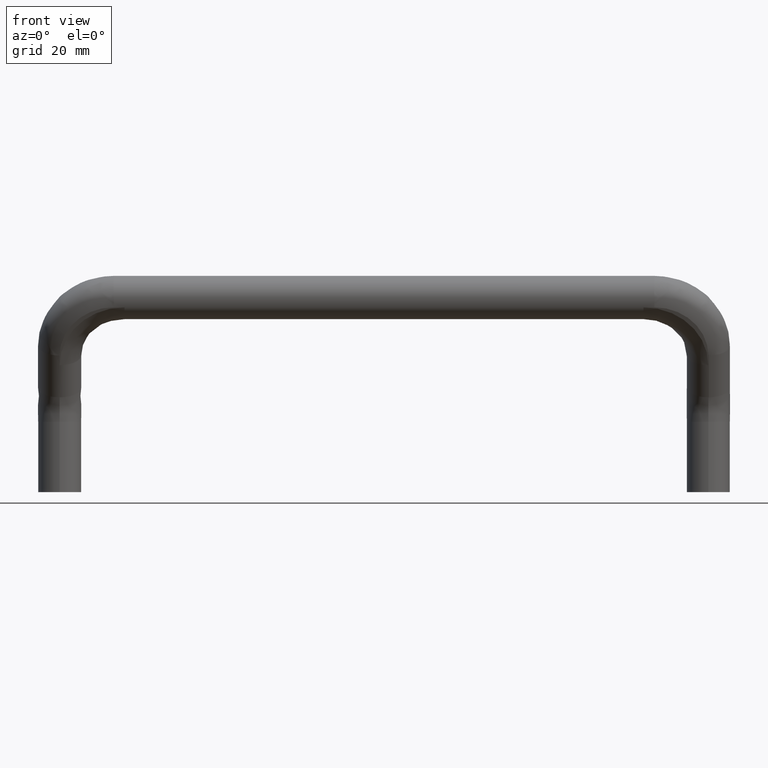
[diagram: clean part render]
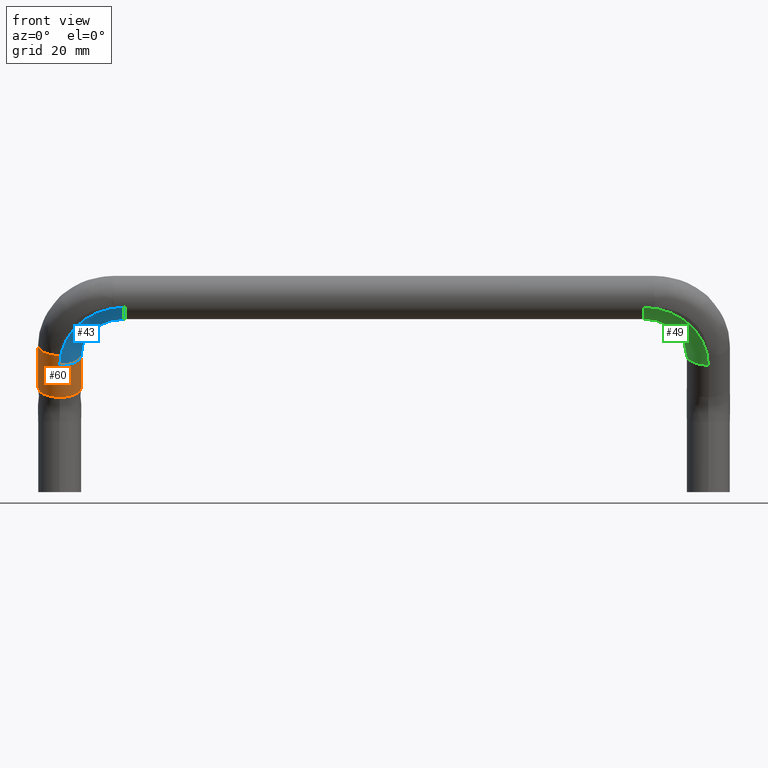
[diagram: same view with three faces highlighted in distinct colors, each labeled with its STEP entity id]
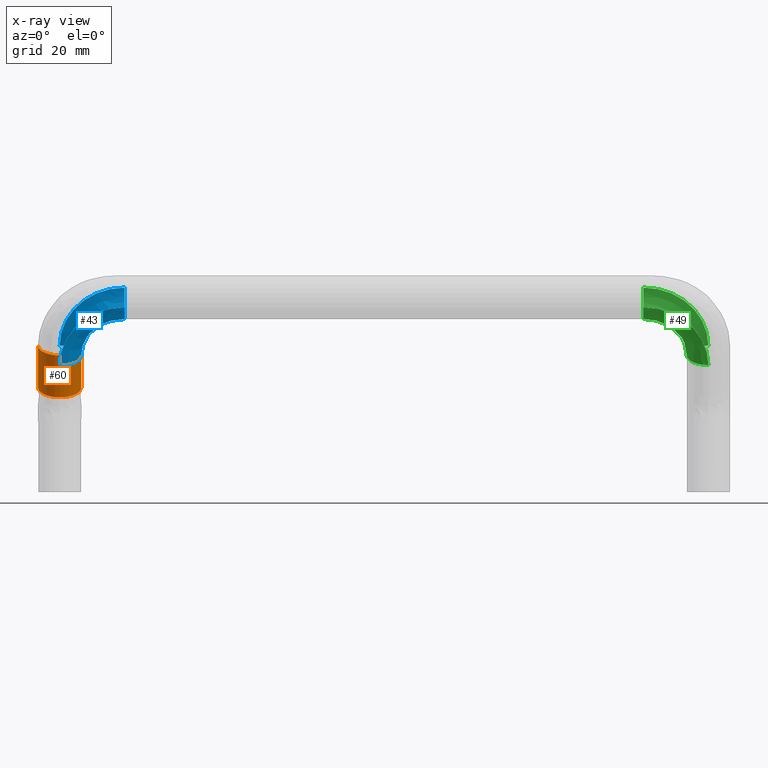
[diagram: x-ray of the same camera — body ghosted, the three highlighted faces saturated]
A machine part, front view with three faces highlighted in distinct colors.
The next image is the same camera in x-ray (body ghosted, the three faces saturated) — at least one of them is partly hidden behind the body in this view.
Their STEP definitions:

[orange] entity #60 — the highlighted cylindrical surface (edge-blend (fillet) strip) has radius 4 mm, axis along (-0, -0.4537, 0.8911).
#60=ADVANCED_FACE('',(#273),#272,.T.);
#272=CYLINDRICAL_SURFACE('',#623,4.00000000000E+00);
#273=FACE_OUTER_BOUND('',#624,.T.);
#620=CARTESIAN_POINT('',(-6.00000000001E+01,6.50663879602E+00,-8.77981880250E+00));
#621=DIRECTION('',(-0.00000000000E+00,-4.53713455470E-01,8.91147631050E-01));
#622=DIRECTION('',(-1.00000000000E+00,5.73060246579E-15,2.91764389658E-15));
#623=AXIS2_PLACEMENT_3D('',#620,#621,#622);
#624=EDGE_LOOP('',(#792,#793,#794,#795,#796,#797,#798));
#792=ORIENTED_EDGE('',*,*,#853,.T.);
#793=ORIENTED_EDGE('',*,*,#874,.T.);
#794=ORIENTED_EDGE('',*,*,#865,.T.);
#795=ORIENTED_EDGE('',*,*,#898,.F.);
#796=ORIENTED_EDGE('',*,*,#899,.F.);
#797=ORIENTED_EDGE('',*,*,#900,.F.);
#798=ORIENTED_EDGE('',*,*,#901,.T.);
#853=EDGE_CURVE('',#1004,#1005,#1006,.T.);
#865=EDGE_CURVE('',#1089,#1082,#1090,.T.);
#874=EDGE_CURVE('',#1005,#1089,#1148,.T.);
#898=EDGE_CURVE('',#1304,#1082,#1305,.T.);
#899=EDGE_CURVE('',#1311,#1304,#1312,.T.);
#900=EDGE_CURVE('',#1318,#1311,#1319,.T.);
#901=EDGE_CURVE('',#1318,#1004,#1325,.T.);
#1004=VERTEX_POINT('',#1468);
#1005=VERTEX_POINT('',#1469);
#1006=CIRCLE('',#1473,4.00000000000E+00);
#1082=VERTEX_POINT('',#1524);
#1089=VERTEX_POINT('',#1529);
#1090=CIRCLE('',#1533,4.00000000000E+00);
#1148=LINE('',#1567,#1568);
#1304=VERTEX_POINT('',#1658);
#1305=(BOUNDED_CURVE() B_SPLINE_CURVE(1,(#1659,#1660),.UNSPECIFIED.,.F.,.F.) B_SPLINE_CURVE_WITH_KNOTS((2,2),(8.33333343261E-02,9.16666664274E-01),.UNSPECIFIED.) CURVE() GEOMETRIC_REPRESENTATION_ITEM() RATIONAL_B_SPLINE_CURVE((1.00000000000E+00,1.00000000000E+00)) REPRESENTATION_ITEM('') );
#1311=VERTEX_POINT('',#1661);
#1312=CIRCLE('',#1665,4.00000000000E+00);
#1318=VERTEX_POINT('',#1666);
#1319=CIRCLE('',#1670,4.00000000000E+00);
#1325=(BOUNDED_CURVE() B_SPLINE_CURVE(1,(#1671,#1672),.UNSPECIFIED.,.F.,.F.) B_SPLINE_CURVE_WITH_KNOTS((2,2),(8.33333333333E-02,7.24688475938E-01),.UNSPECIFIED.) CURVE() GEOMETRIC_REPRESENTATION_ITEM() RATIONAL_B_SPLINE_CURVE((7.50000000000E-01,7.50000000000E-01)) REPRESENTATION_ITEM('') );
#1468=CARTESIAN_POINT('',(-5.60000000001E+01,5.44456172076E+00,-6.69377144282E+00));
#1469=CARTESIAN_POINT('',(-6.00000000001E+01,1.87997094149E+00,-8.50862539456E+00));
#1470=CARTESIAN_POINT('',(-6.00000000001E+01,5.44456146569E+00,-6.69377157268E+00));
#1471=DIRECTION('',(1.36003003584E-16,4.53713455470E-01,-8.91147631050E-01));
#1472=DIRECTION('',(-1.00000000000E+00,1.39483091743E-10,7.10154157701E-11));
#1473=AXIS2_PLACEMENT_3D('',#1470,#1471,#1472);
#1524=CARTESIAN_POINT('',(-6.40000000001E+01,4.53713455410E+00,-4.91147631069E+00));
#1529=CARTESIAN_POINT('',(-6.00000000001E+01,9.72544030464E-01,-6.72633013229E+00));
#1530=CARTESIAN_POINT('',(-6.00000000001E+01,4.53713455466E+00,-4.91147631041E+00));
#1531=DIRECTION('',(-1.39452967292E-16,4.53713455470E-01,-8.91147631050E-01));
#1532=DIRECTION('',(1.00000000000E+00,-4.75267381006E-10,-2.41974884574E-10));
#1533=AXIS2_PLACEMENT_3D('',#1530,#1531,#1532);
#1567=CARTESIAN_POINT('',(-6.00000000001E+01,1.87997094149E+00,-8.50862539456E+00));
#1568=VECTOR('',#1569,2.00000000019E+00);
#1569=DIRECTION('',(0.00000000000E+00,-4.53713455470E-01,8.91147631050E-01));
#1658=CARTESIAN_POINT('',(-6.40000000001E+01,8.47606683471E+00,-1.26480116234E+01));
#1659=CARTESIAN_POINT('',(-6.40000000001E+01,8.47606683001E+00,-1.26480116142E+01));
#1660=CARTESIAN_POINT('',(-6.40000000001E+01,4.53713456597E+00,-4.91147633262E+00));
#1661=CARTESIAN_POINT('',(-6.00000000008E+01,4.91147631049E+00,-1.44628654453E+01));
#1662=CARTESIAN_POINT('',(-6.00000000001E+01,8.47606683469E+00,-1.26480116234E+01));
#1663=DIRECTION('',(1.65436122511E-24,4.53713455470E-01,-8.91147631050E-01));
#1664=DIRECTION('',(-2.62249990612E-08,8.91147631050E-01,4.53713455470E-01));
#1665=AXIS2_PLACEMENT_3D('',#1662,#1663,#1664);
#1666=CARTESIAN_POINT('',(-5.60000000001E+01,8.47606798242E+00,-1.26480110391E+01));
#1667=CARTESIAN_POINT('',(-6.00000000001E+01,8.47606683469E+00,-1.26480116234E+01));
#1668=DIRECTION('',(1.65436122511E-24,4.53713455470E-01,-8.91147631050E-01));
#1669=DIRECTION('',(-2.62249990612E-08,8.91147631050E-01,4.53713455470E-01));
#1670=AXIS2_PLACEMENT_3D('',#1667,#1668,#1669);
#1671=CARTESIAN_POINT('',(-5.60000000001E+01,8.47606683470E+00,-1.26480116234E+01));
#1672=CARTESIAN_POINT('',(-5.60000000001E+01,5.44456146569E+00,-6.69377157269E+00));

[blue] entity #43 — the highlighted face is a freeform B-spline surface patch.
#43=ADVANCED_FACE('',(#102),#101,.T.);
#101=( BOUNDED_SURFACE() B_SPLINE_SURFACE( 2,2,((#429,#430,#431,#432,#433),(#434,#435,#436,#437,#438),(#439,#440,#441,#442,#443),(#444,#445,#446,#447,#448),(#449,#450,#451,#452,#453),(#454,#455,#456,#457,#458),(#459,#460,#461,#462,#463)), .UNSPECIFIED.,.F.,.F.,.F.) B_SPLINE_SURFACE_WITH_KNOTS((3,2,2,3),(3,2,3),(-1.55147984033E+00,0.00000000000E+00,1.57079632679E+00,1.59011272818E+00),(2.44016936071E-01,3.33333333333E-01,4.99999999999E-01), .UNSPECIFIED. ) GEOMETRIC_REPRESENTATION_ITEM() RATIONAL_B_SPLINE_SURFACE(((7.98128216237E-01,8.59863648611E-01,9.92885017615E-01,7.44663763212E-01,7.44663763211E-01),(5.71301357895E-01,6.15491671716E-01,7.10708564434E-01,5.33031423327E-01,5.33031423326E-01),(8.03847577592E-01,8.66025404107E-01,1.00000000000E+00,7.50000000001E-01,7.50000000000E-01),(5.68406073156E-01,6.12372435924E-01,7.07106781187E-01,5.30330085891E-01,5.30330085890E-01),(8.03847577592E-01,8.66025404107E-01,1.00000000000E+00,7.50000000001E-01,7.50000000000E-01),(8.00952305606E-01,8.62906182052E-01,9.96398232616E-01,7.47298674463E-01,7.47298674462E-01),(7.98128241114E-01,8.59863675412E-01,9.92885048562E-01,7.44663786423E-01,7.44663786421E-01))) REPRESENTATION_ITEM('') SURFACE() );
#102=FACE_OUTER_BOUND('',#464,.T.);
#429=CARTESIAN_POINT('',(-4.80000000169E+01,3.56459066434E+00,5.81485354663E+00));
#430=CARTESIAN_POINT('',(-5.12153902344E+01,3.56459066638E+00,5.81485354263E+00));
#431=CARTESIAN_POINT('',(-5.39999998458E+01,4.29402356952E+00,4.38215985499E+00));
#432=CARTESIAN_POINT('',(-5.99999996914E+01,5.86573304300E+00,1.29513398636E+00));
#433=CARTESIAN_POINT('',(-5.99999996914E+01,9.00915198990E+00,-4.87891775082E+00));
#434=CARTESIAN_POINT('',(-4.80000000114E+01,5.34804213996E+00,2.31194032715E+00));
#435=CARTESIAN_POINT('',(-5.01621385609E+01,5.34804214133E+00,2.31194032446E+00));
#436=CARTESIAN_POINT('',(-5.20346054713E+01,5.83853781759E+00,1.34854800124E+00));
#437=CARTESIAN_POINT('',(-5.60692109424E+01,6.89540911824E+00,-7.27273962021E-01));
#438=CARTESIAN_POINT('',(-5.60692109424E+01,9.00915171949E+00,-4.87891788848E+00));
#439=CARTESIAN_POINT('',(-4.80000000113E+01,1.87678809351E+00,4.67625946643E-01));
#440=CARTESIAN_POINT('',(-5.01437567846E+01,1.87678809487E+00,4.67625943975E-01));
#441=CARTESIAN_POINT('',(-5.20003046099E+01,2.36311374153E+00,-4.87575941090E-01));
#442=CARTESIAN_POINT('',(-5.60006092195E+01,3.41099987713E+00,-2.54574996280E+00));
#443=CARTESIAN_POINT('',(-5.60006092195E+01,5.50677214831E+00,-6.66209800617E+00));
#444=CARTESIAN_POINT('',(-4.80000000112E+01,-1.65558595976E+00,-1.40916214682E+00));
#445=CARTESIAN_POINT('',(-5.01250513518E+01,-1.65558595842E+00,-1.40916214947E+00));
#446=CARTESIAN_POINT('',(-5.19653997970E+01,-1.17350376503E+00,-2.35602938347E+00));
#447=CARTESIAN_POINT('',(-5.59307995938E+01,-1.34761000504E-01,-4.39624472801E+00));
#448=CARTESIAN_POINT('',(-5.59307995938E+01,1.94272452851E+00,-8.47667541702E+00));
#449=CARTESIAN_POINT('',(-4.80000000168E+01,-3.53237405323E+00,2.12321190645E+00));
#450=CARTESIAN_POINT('',(-5.11966848843E+01,-3.53237405120E+00,2.12321190247E+00));
#451=CARTESIAN_POINT('',(-5.39650951873E+01,-2.80718458256E+00,6.98852829031E-01));
#452=CARTESIAN_POINT('',(-5.99301903744E+01,-1.24461843972E+00,-2.37021444186E+00));
#453=CARTESIAN_POINT('',(-5.99301903744E+01,1.88051384590E+00,-8.50834898356E+00));
#454=CARTESIAN_POINT('',(-4.80000000168E+01,-3.54875253484E+00,2.15403846789E+00));
#455=CARTESIAN_POINT('',(-5.12060368884E+01,-3.54875253281E+00,2.15403846390E+00));
#456=CARTESIAN_POINT('',(-5.39825462647E+01,-2.82144149911E+00,7.25512382289E-01));
#457=CARTESIAN_POINT('',(-5.99650925291E+01,-1.25430401889E+00,-2.35253354337E+00));
#458=CARTESIAN_POINT('',(-5.99650925291E+01,1.87997094150E+00,-8.50862539458E+00));
#459=CARTESIAN_POINT('',(-4.80000000169E+01,-3.56459052424E+00,2.18514617820E+00));
#460=CARTESIAN_POINT('',(-5.12153903172E+01,-3.56459052220E+00,2.18514617420E+00));
#461=CARTESIAN_POINT('',(-5.40000000003E+01,-2.83515760028E+00,7.52452449678E-01));
#462=CARTESIAN_POINT('',(-6.00000000003E+01,-1.26344808634E+00,-2.33457349844E+00));
#463=CARTESIAN_POINT('',(-6.00000000003E+01,1.87997094150E+00,-8.50862539458E+00));
#464=EDGE_LOOP('',(#706,#707,#708,#709,#710,#711));
#706=ORIENTED_EDGE('',*,*,#853,.F.);
#707=ORIENTED_EDGE('',*,*,#854,.F.);
#708=ORIENTED_EDGE('',*,*,#855,.T.);
#709=ORIENTED_EDGE('',*,*,#856,.T.);
#710=ORIENTED_EDGE('',*,*,#857,.T.);
#711=ORIENTED_EDGE('',*,*,#858,.T.);
#853=EDGE_CURVE('',#1004,#1005,#1006,.T.);
#854=EDGE_CURVE('',#1012,#1004,#1013,.T.);
#855=EDGE_CURVE('',#1012,#1019,#1020,.T.);
#856=EDGE_CURVE('',#1019,#1026,#1027,.T.);
#857=EDGE_CURVE('',#1026,#1033,#1034,.T.);
#858=EDGE_CURVE('',#1033,#1005,#1040,.T.);
#1004=VERTEX_POINT('',#1468);
#1005=VERTEX_POINT('',#1469);
#1006=CIRCLE('',#1473,4.00000000000E+00);
#1012=VERTEX_POINT('',#1474);
#1013=CIRCLE('',#1478,4.00000000000E+00);
#1019=VERTEX_POINT('',#1479);
#1020=CIRCLE('',#1483,1.20000000000E+01);
#1026=VERTEX_POINT('',#1484);
#1027=CIRCLE('',#1488,4.00000000000E+00);
#1033=VERTEX_POINT('',#1489);
#1034=CIRCLE('',#1493,4.00000000000E+00);
#1040=CIRCLE('',#1497,1.20000000000E+01);
#1468=CARTESIAN_POINT('',(-5.60000000001E+01,5.44456172076E+00,-6.69377144282E+00));
#1469=CARTESIAN_POINT('',(-6.00000000001E+01,1.87997094149E+00,-8.50862539456E+00));
#1470=CARTESIAN_POINT('',(-6.00000000001E+01,5.44456146569E+00,-6.69377157268E+00));
#1471=DIRECTION('',(1.36003003584E-16,4.53713455470E-01,-8.91147631050E-01));
#1472=DIRECTION('',(-1.00000000000E+00,1.39483091743E-10,7.10154157701E-11));
#1473=AXIS2_PLACEMENT_3D('',#1470,#1471,#1472);
#1474=CARTESIAN_POINT('',(-6.00000000001E+01,9.00915198987E+00,-4.87891775082E+00));
#1475=CARTESIAN_POINT('',(-6.00000000001E+01,5.44456146569E+00,-6.69377157268E+00));
#1476=DIRECTION('',(1.36003003584E-16,4.53713455470E-01,-8.91147631050E-01));
#1477=DIRECTION('',(-1.00000000000E+00,1.39483091743E-10,7.10154157701E-11));
#1478=AXIS2_PLACEMENT_3D('',#1475,#1476,#1477);
#1479=CARTESIAN_POINT('',(-4.80000000001E+01,3.56459052426E+00,5.81485382179E+00));
#1480=CARTESIAN_POINT('',(-4.80000000001E+01,9.00915198987E+00,-4.87891775082E+00));
#1481=DIRECTION('',(0.00000000000E+00,8.91147631051E-01,4.53713455468E-01));
#1482=DIRECTION('',(1.00000000000E+00,-0.00000000000E+00,-0.00000000000E+00));
#1483=AXIS2_PLACEMENT_3D('',#1480,#1481,#1482);
#1484=CARTESIAN_POINT('',(-4.80000000001E+01,-5.52098460034E-06,-7.61902096730E-11));
#1485=CARTESIAN_POINT('',(-4.80000000001E+01,4.27399001607E-11,3.99999999992E+00));
#1486=DIRECTION('',(-1.00000000000E+00,3.14826953025E-15,-6.18357886458E-15));
#1487=DIRECTION('',(-4.55310903712E-31,8.91147631052E-01,4.53713455466E-01));
#1488=AXIS2_PLACEMENT_3D('',#1485,#1486,#1487);
#1489=CARTESIAN_POINT('',(-4.80000000001E+01,-3.56459052424E+00,2.18514617820E+00));
#1490=CARTESIAN_POINT('',(-4.80000000001E+01,4.27399001607E-11,3.99999999992E+00));
#1491=DIRECTION('',(-1.00000000000E+00,3.14826953025E-15,-6.18357886458E-15));
#1492=DIRECTION('',(-4.55310903712E-31,8.91147631052E-01,4.53713455466E-01));
#1493=AXIS2_PLACEMENT_3D('',#1490,#1491,#1492);
#1494=CARTESIAN_POINT('',(-4.80000000001E+01,1.87997094149E+00,-8.50862539456E+00));
#1495=DIRECTION('',(0.00000000000E+00,-8.91147631050E-01,-4.53713455470E-01));
#1496=DIRECTION('',(-0.00000000000E+00,4.53713455470E-01,-8.91147631050E-01));
#1497=AXIS2_PLACEMENT_3D('',#1494,#1495,#1496);

[green] entity #49 — the highlighted face is a freeform B-spline surface patch.
#49=ADVANCED_FACE('',(#163),#162,.T.);
#162=( BOUNDED_SURFACE() B_SPLINE_SURFACE( 2,2,((#522,#523,#524,#525,#526),(#527,#528,#529,#530,#531),(#532,#533,#534,#535,#536),(#537,#538,#539,#540,#541),(#542,#543,#544,#545,#546)), .UNSPECIFIED.,.F.,.F.,.F.) B_SPLINE_SURFACE_WITH_KNOTS((3,2,3),(3,2,3),(-1.57079623988E+00,4.44089209850E-16,1.57079632356E+00),(2.44016936053E-01,3.33333333333E-01,5.00000000000E-01), .UNSPECIFIED. ) GEOMETRIC_REPRESENTATION_ITEM() RATIONAL_B_SPLINE_SURFACE(((8.03847551513E-01,8.66025376010E-01,9.99999967588E-01,7.49999975691E-01,7.49999975691E-01),(5.68406086166E-01,6.12372449939E-01,7.07106797393E-01,5.30330098044E-01,5.30330098045E-01),(8.03847577567E-01,8.66025404080E-01,1.00000000000E+00,7.50000000000E-01,7.50000000000E-01),(5.68406073623E-01,6.12372436427E-01,7.07106781789E-01,5.30330086342E-01,5.30330086342E-01),(8.03847576598E-01,8.66025403035E-01,9.99999998794E-01,7.49999999095E-01,7.49999999096E-01))) REPRESENTATION_ITEM('') SURFACE() );
#163=FACE_OUTER_BOUND('',#547,.T.);
#522=CARTESIAN_POINT('',(5.99999996871E+01,9.00915198294E+00,-4.87891773716E+00));
#523=CARTESIAN_POINT('',(5.99999996830E+01,7.55028617684E+00,-2.01353036227E+00));
#524=CARTESIAN_POINT('',(5.83923045745E+01,6.28687132805E+00,4.67967896063E-01));
#525=CARTESIAN_POINT('',(5.49282030497E+01,3.56459066624E+00,5.81485354288E+00));
#526=CARTESIAN_POINT('',(4.80000000001E+01,3.56459066625E+00,5.81485354286E+00));
#527=CARTESIAN_POINT('',(5.60000000001E+01,9.00915170632E+00,-4.87891788372E+00));
#528=CARTESIAN_POINT('',(5.59999999974E+01,8.03657447689E+00,-2.96865958396E+00));
#529=CARTESIAN_POINT('',(5.49282032304E+01,7.19429788906E+00,-1.31432736859E+00));
#530=CARTESIAN_POINT('',(5.26188021536E+01,5.37944406718E+00,2.25026315560E+00));
#531=CARTESIAN_POINT('',(4.80000000001E+01,5.37944406719E+00,2.25026315558E+00));
#532=CARTESIAN_POINT('',(5.60000000001E+01,5.44456146105E+00,-6.69377156358E+00));
#533=CARTESIAN_POINT('',(5.59999999974E+01,4.47198423162E+00,-4.78351326383E+00));
#534=CARTESIAN_POINT('',(5.49282032304E+01,3.62970764379E+00,-3.12918104846E+00));
#535=CARTESIAN_POINT('',(5.26188021536E+01,1.81485382192E+00,4.35409475732E-01));
#536=CARTESIAN_POINT('',(4.80000000001E+01,1.81485382192E+00,4.35409475716E-01));
#537=CARTESIAN_POINT('',(5.60000000001E+01,1.87997094724E+00,-8.50862538018E+00));
#538=CARTESIAN_POINT('',(5.59999999974E+01,9.07393717805E-01,-6.59836708043E+00));
#539=CARTESIAN_POINT('',(5.49282032304E+01,6.51171299763E-02,-4.94403486505E+00));
#540=CARTESIAN_POINT('',(5.26188021536E+01,-1.74973669190E+00,-1.37944434086E+00));
#541=CARTESIAN_POINT('',(4.80000000001E+01,-1.74973669189E+00,-1.37944434088E+00));
#542=CARTESIAN_POINT('',(5.99999999885E+01,1.87997093455E+00,-8.50862538092E+00));
#543=CARTESIAN_POINT('',(5.99999999844E+01,4.21105091813E-01,-5.64323793407E+00));
#544=CARTESIAN_POINT('',(5.83923048354E+01,-8.42309788704E-01,-3.16173961342E+00));
#545=CARTESIAN_POINT('',(5.49282032236E+01,-3.56459051888E+00,2.18514616768E+00));
#546=CARTESIAN_POINT('',(4.80000000001E+01,-3.56459051887E+00,2.18514616765E+00));
#547=EDGE_LOOP('',(#732,#733,#734,#735,#736,#737));
#732=ORIENTED_EDGE('',*,*,#875,.T.);
#733=ORIENTED_EDGE('',*,*,#876,.T.);
#734=ORIENTED_EDGE('',*,*,#877,.F.);
#735=ORIENTED_EDGE('',*,*,#878,.F.);
#736=ORIENTED_EDGE('',*,*,#879,.F.);
#737=ORIENTED_EDGE('',*,*,#844,.F.);
#844=EDGE_CURVE('',#942,#943,#944,.T.);
#875=EDGE_CURVE('',#942,#1154,#1155,.T.);
#876=EDGE_CURVE('',#1154,#1161,#1162,.T.);
#877=EDGE_CURVE('',#1168,#1161,#1169,.T.);
#878=EDGE_CURVE('',#1175,#1168,#1176,.T.);
#879=EDGE_CURVE('',#943,#1175,#1182,.T.);
#942=VERTEX_POINT('',#1426);
#943=VERTEX_POINT('',#1427);
#944=CIRCLE('',#1431,1.20000000000E+01);
#1154=VERTEX_POINT('',#1570);
#1155=CIRCLE('',#1574,4.00000000000E+00);
#1161=VERTEX_POINT('',#1575);
#1162=CIRCLE('',#1579,4.00000000000E+00);
#1168=VERTEX_POINT('',#1580);
#1169=CIRCLE('',#1584,1.20000000000E+01);
#1175=VERTEX_POINT('',#1585);
#1176=CIRCLE('',#1589,4.00000000000E+00);
#1182=CIRCLE('',#1593,4.00000000000E+00);
#1426=CARTESIAN_POINT('',(6.00000000001E+01,9.00915198987E+00,-4.87891775082E+00));
#1427=CARTESIAN_POINT('',(4.80000000001E+01,3.56459052426E+00,5.81485382179E+00));
#1428=CARTESIAN_POINT('',(4.80000000001E+01,9.00915198987E+00,-4.87891775082E+00));
#1429=DIRECTION('',(0.00000000000E+00,-8.91147631051E-01,-4.53713455468E-01));
#1430=DIRECTION('',(-1.00000000000E+00,-0.00000000000E+00,-0.00000000000E+00));
#1431=AXIS2_PLACEMENT_3D('',#1428,#1429,#1430);
#1570=CARTESIAN_POINT('',(5.98813130641E+01,9.00758249058E+00,-4.87971683608E+00));
#1571=CARTESIAN_POINT('',(6.00000000001E+01,5.44456146569E+00,-6.69377157268E+00));
#1572=DIRECTION('',(0.00000000000E+00,-4.53713455470E-01,8.91147631050E-01));
#1573=DIRECTION('',(-0.00000000000E+00,-8.91147631050E-01,-4.53713455470E-01));
#1574=AXIS2_PLACEMENT_3D('',#1571,#1572,#1573);
#1575=CARTESIAN_POINT('',(6.00000000001E+01,1.87997094149E+00,-8.50862539456E+00));
#1576=CARTESIAN_POINT('',(6.00000000001E+01,5.44456146569E+00,-6.69377157268E+00));
#1577=DIRECTION('',(0.00000000000E+00,-4.53713455470E-01,8.91147631050E-01));
#1578=DIRECTION('',(-0.00000000000E+00,-8.91147631050E-01,-4.53713455470E-01));
#1579=AXIS2_PLACEMENT_3D('',#1576,#1577,#1578);
#1580=CARTESIAN_POINT('',(4.80000000001E+01,-3.56459052424E+00,2.18514617820E+00));
#1581=CARTESIAN_POINT('',(4.80000000001E+01,1.87997094149E+00,-8.50862539456E+00));
#1582=DIRECTION('',(0.00000000000E+00,8.91147631050E-01,4.53713455470E-01));
#1583=DIRECTION('',(-0.00000000000E+00,4.53713455470E-01,-8.91147631050E-01));
#1584=AXIS2_PLACEMENT_3D('',#1581,#1582,#1583);
#1585=CARTESIAN_POINT('',(4.80000000001E+01,-5.52098460072E-06,-7.61897973083E-11));
#1586=CARTESIAN_POINT('',(4.80000000001E+01,4.27399001607E-11,3.99999999992E+00));
#1587=DIRECTION('',(-1.00000000000E+00,-3.14829451637E-15,5.32916258750E-15));
#1588=DIRECTION('',(5.32907051820E-15,2.92434610622E-05,9.99999999572E-01));
#1589=AXIS2_PLACEMENT_3D('',#1586,#1587,#1588);
#1590=CARTESIAN_POINT('',(4.80000000001E+01,4.27399001607E-11,3.99999999992E+00));
#1591=DIRECTION('',(-1.00000000000E+00,-3.14829451637E-15,5.32916258750E-15));
#1592=DIRECTION('',(5.32907051820E-15,2.92434610622E-05,9.99999999572E-01));
#1593=AXIS2_PLACEMENT_3D('',#1590,#1591,#1592);